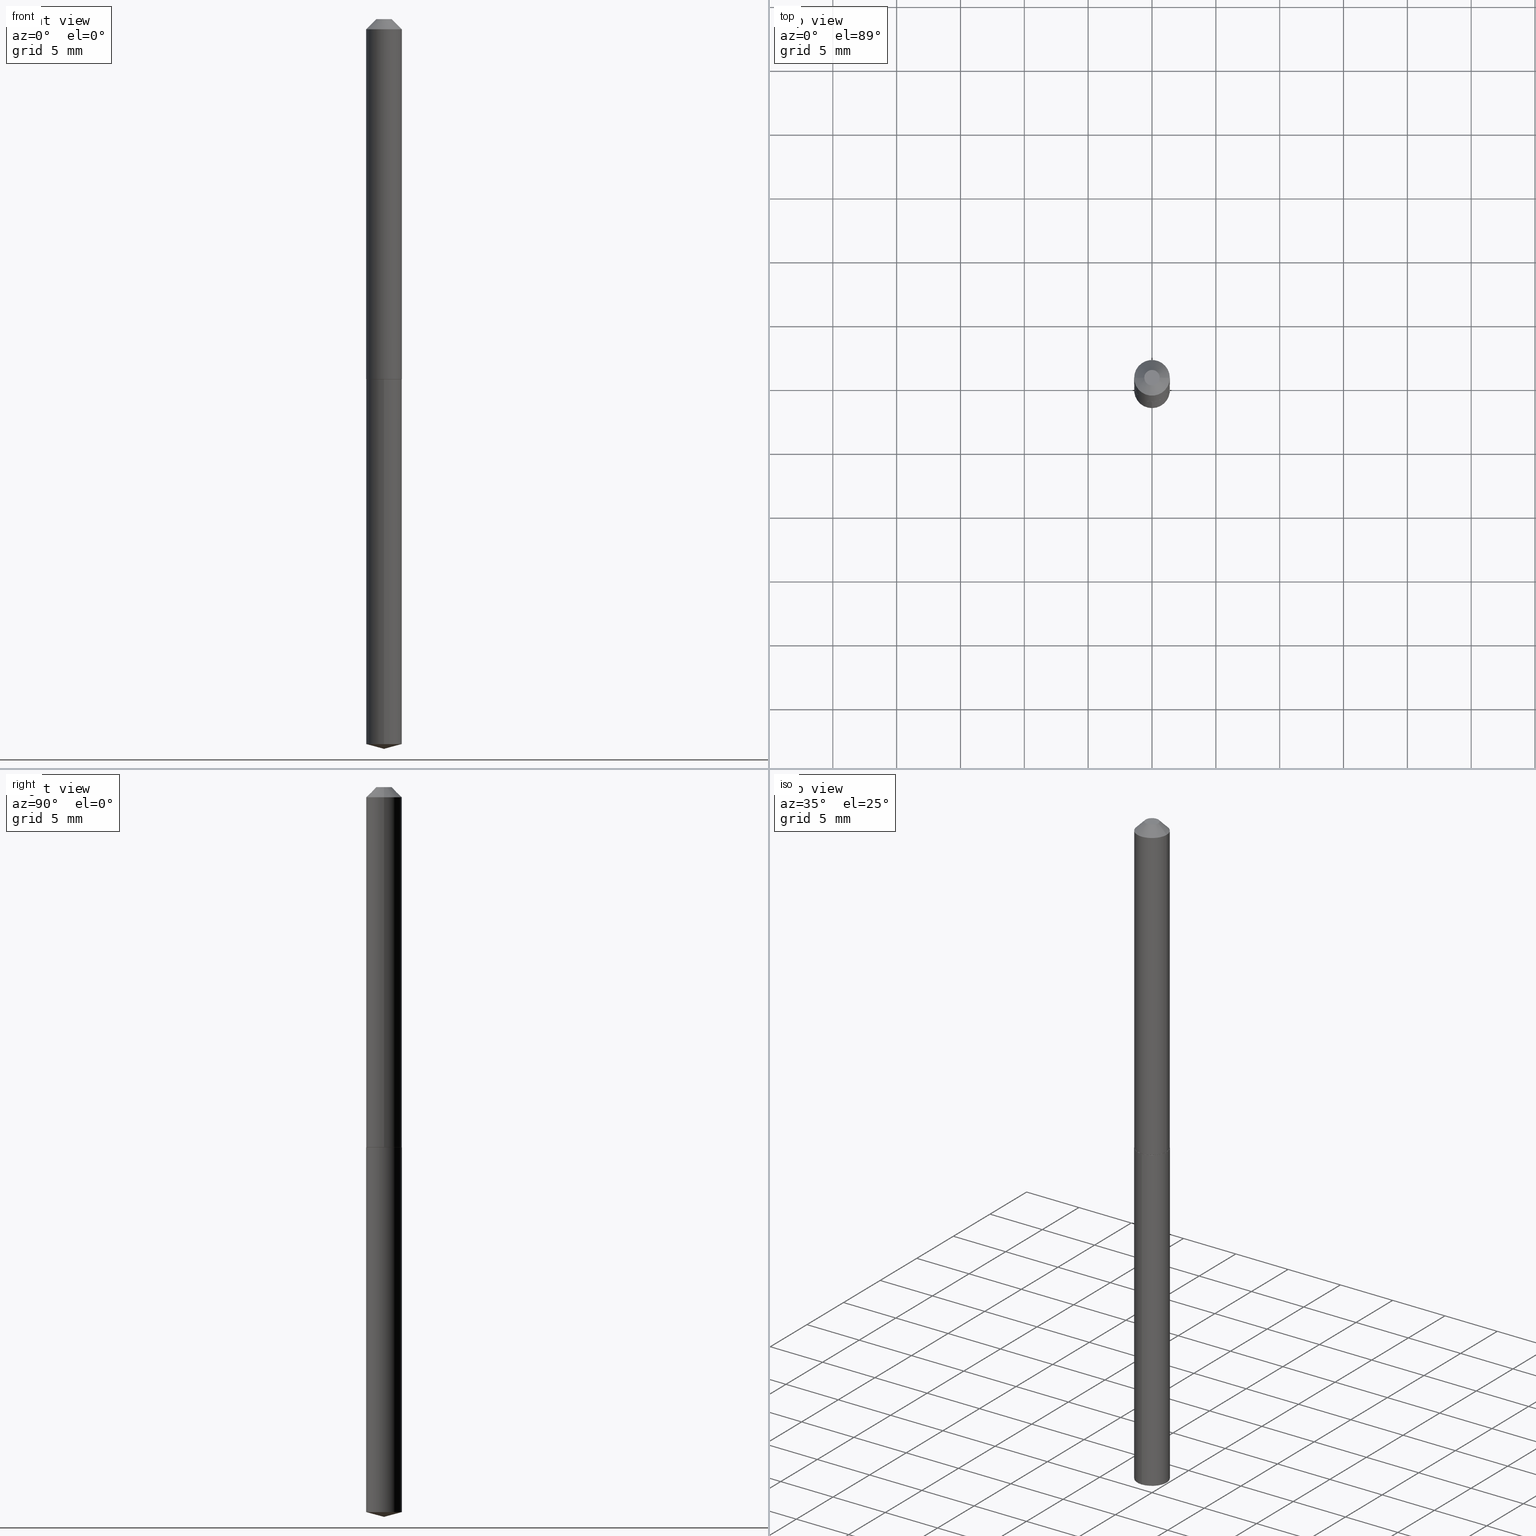
[diagram: canonical four-view strip — front | top / right | iso, engineering-drawing reading convention]
A machine part, canonical four-view strip (front | top / right | iso — engineering-drawing reading convention). The complete STEP part file that produces these views, byte-faithful:
ISO-10303-21;
HEADER;
FILE_DESCRIPTION (( 'STEP AP203' ),
    '1' );
FILE_NAME ('58013.STEP',
    '2024-04-23T00:11:21',
    ( '' ),
    ( '' ),
    'SwSTEP 2.0',
    'SolidWorks 2023',
    '' );
FILE_SCHEMA (( 'CONFIG_CONTROL_DESIGN' ));
ENDSEC;

DATA;
#1 = DIRECTION ( 'NONE',  ( 1.000000000000000000, -6.982962677686265922E-15, 0.000000000000000000 ) ) ;
#2 = APPLICATION_CONTEXT ( 'configuration controlled 3d designs of mechanical parts and assemblies' ) ;
#3 = CARTESIAN_POINT ( 'NONE',  ( 3.907985046680821720E-16, 0.05499999999999612837, -1.110000000000000098 ) ) ;
#4 = ADVANCED_FACE ( 'NONE', ( #335 ), #324, .T. ) ;
#5 = VERTEX_POINT ( 'NONE', #243 ) ;
#6 = DIRECTION ( 'NONE',  ( 2.446324664428034914E-29, -3.490255701126888616E-15, -1.000000000000000000 ) ) ;
#7 = DIRECTION ( 'NONE',  ( -1.000000000000000000, 6.982962677686265922E-15, 0.000000000000000000 ) ) ;
#8 = AXIS2_PLACEMENT_3D ( 'NONE', #144, #265, #363 ) ;
#9 = CARTESIAN_POINT ( 'NONE',  ( 5.467228502809281415E-29, -7.802999169593315516E-15, -2.235262794416288390 ) ) ;
#10 = EDGE_CURVE ( 'NONE', #370, #221, #389, .T. ) ;
#11 = EDGE_CURVE ( 'NONE', #169, #298, #188, .T. ) ;
#12 = DIRECTION ( 'NONE',  ( -1.000000000000000000, 6.982962677686265922E-15, 0.000000000000000000 ) ) ;
#13 = CARTESIAN_POINT ( 'NONE',  ( -9.080871417020763159E-28, 1.295572059912486078E-13, 37.12007874015748143 ) ) ;
#14 = CARTESIAN_POINT ( 'NONE',  ( 0.000000000000000000, 0.000000000000000000, 0.000000000000000000 ) ) ;
#15 = ADVANCED_FACE ( 'NONE', ( #125 ), #226, .T. ) ;
#16 = DIRECTION ( 'NONE',  ( 1.000000000000000000, -6.982962677686262766E-15, 0.000000000000000000 ) ) ;
#17 = AXIS2_PLACEMENT_3D ( 'NONE', #207, #386, #118 ) ;
#18 = CARTESIAN_POINT ( 'NONE',  ( 0.000000000000000000, 0.000000000000000000, 0.000000000000000000 ) ) ;
#19 = CIRCLE ( 'NONE', #32, 0.05500000000000000028 ) ;
#20 = APPROVAL_STATUS ( 'not_yet_approved' ) ;
#21 = EDGE_CURVE ( 'NONE', #221, #370, #159, .T. ) ;
#22 = EDGE_LOOP ( 'NONE', ( #247, #306, #65, #156 ) ) ;
#23 = PERSON_AND_ORGANIZATION ( #147, #114 ) ;
#24 = CALENDAR_DATE ( 2024, 22, 4 ) ;
#25 = CONICAL_SURFACE ( 'NONE', #359, 146.9311341562576274, 1.308996938995751647 ) ;
#26 = ORIENTED_EDGE ( 'NONE', *, *, #10, .T. ) ;
#27 = DIRECTION ( 'NONE',  ( -6.982962677686266711E-15, -1.000000000000000000, 2.483498176058421144E-15 ) ) ;
#28 = ORIENTED_EDGE ( 'NONE', *, *, #138, .T. ) ;
#29 = DATE_AND_TIME ( #24, #263 ) ;
#30 = DIRECTION ( 'NONE',  ( -2.446324664428035755E-29, 3.490255701126888222E-15, 1.000000000000000000 ) ) ;
#31 = CC_DESIGN_DATE_AND_TIME_ASSIGNMENT ( #143, #299, ( #302 ) ) ;
#32 = AXIS2_PLACEMENT_3D ( 'NONE', #321, #242, #358 ) ;
#33 = CARTESIAN_POINT ( 'NONE',  ( 0.05500000000000013906, -4.257861492719215232E-15, -1.109499999999999931 ) ) ;
#34 = LOCAL_TIME ( 20, 11, 21.00000000000000000, #204 ) ;
#35 = EDGE_LOOP ( 'NONE', ( #168, #148, #337, #216 ) ) ;
#36 = FACE_OUTER_BOUND ( 'NONE', #200, .T. ) ;
#37 = VERTEX_POINT ( 'NONE', #310 ) ;
#38 = LINE ( 'NONE', #128, #134 ) ;
#39 = ORIENTED_EDGE ( 'NONE', *, *, #272, .F. ) ;
#40 = DIRECTION ( 'NONE',  ( 1.000000000000000000, 0.000000000000000000, 0.000000000000000000 ) ) ;
#41 = CONICAL_SURFACE ( 'NONE', #89, 146.9311341562576274, 1.308996938995751647 ) ;
#42 = AXIS2_PLACEMENT_3D ( 'NONE', #275, #185, #334 ) ;
#43 = EDGE_CURVE ( 'NONE', #368, #298, #234, .T. ) ;
#44 = DIRECTION ( 'NONE',  ( -2.445468806185136597E-29, 3.491481338843145583E-15, 1.000000000000000000 ) ) ;
#45 = ADVANCED_FACE ( 'NONE', ( #102 ), #199, .T. ) ;
#46 = DIRECTION ( 'NONE',  ( 2.445468806185136597E-29, -3.491481338843145583E-15, -1.000000000000000000 ) ) ;
#47 = LINE ( 'NONE', #376, #345 ) ;
#48 = DIRECTION ( 'NONE',  ( -2.445468806185136597E-29, 3.491481338843145583E-15, 1.000000000000000000 ) ) ;
#49 = AXIS2_PLACEMENT_3D ( 'NONE', #313, #48, #260 ) ;
#50 =( CONVERSION_BASED_UNIT ( 'INCH', #164 ) LENGTH_UNIT ( ) NAMED_UNIT ( #220 ) );
#51 = CIRCLE ( 'NONE', #340, 0.05500000000000001416 ) ;
#52 = VECTOR ( 'NONE', #231, 39.37007874015748143 ) ;
#53 = DIRECTION ( 'NONE',  ( -2.446324664428035755E-29, 3.490255701126888222E-15, 1.000000000000000000 ) ) ;
#54 = ORIENTED_EDGE ( 'NONE', *, *, #155, .T. ) ;
#55 = COORDINATED_UNIVERSAL_TIME_OFFSET ( 5, 0, .BEHIND. ) ;
#56 = EDGE_CURVE ( 'NONE', #366, #5, #191, .T. ) ;
#57 = DIRECTION ( 'NONE',  ( 1.000000000000000000, -6.982962677686270655E-15, 0.000000000000000000 ) ) ;
#58 = VECTOR ( 'NONE', #95, 39.37007874015748143 ) ;
#59 = FACE_OUTER_BOUND ( 'NONE', #186, .T. ) ;
#60 = PERSON_AND_ORGANIZATION ( #147, #114 ) ;
#61 = LINE ( 'NONE', #215, #58 ) ;
#62 = CARTESIAN_POINT ( 'NONE',  ( 7.642090019328601786E-31, -1.091087918388490144E-16, -0.03125000000000020123 ) ) ;
#63 = EDGE_CURVE ( 'NONE', #370, #169, #282, .T. ) ;
#64 = LINE ( 'NONE', #33, #80 ) ;
#65 = ORIENTED_EDGE ( 'NONE', *, *, #56, .T. ) ;
#66 = DIRECTION ( 'NONE',  ( 1.000000000000000000, -6.982962677686270655E-15, 0.000000000000000000 ) ) ;
#67 = ORIENTED_EDGE ( 'NONE', *, *, #319, .T. ) ;
#68 = ORIENTED_EDGE ( 'NONE', *, *, #177, .T. ) ;
#69 = ADVANCED_FACE ( 'NONE', ( #257 ), #77, .F. ) ;
#70 = AXIS2_PLACEMENT_3D ( 'NONE', #197, #349, #317 ) ;
#71 = VECTOR ( 'NONE', #99, 39.37007874015748143 ) ;
#72 = DIRECTION ( 'NONE',  ( 1.000000000000000000, -6.982962677686267499E-15, 4.876176775795936353E-29 ) ) ;
#73 = EDGE_CURVE ( 'NONE', #211, #368, #108, .T. ) ;
#74 =( LENGTH_UNIT ( ) NAMED_UNIT ( * ) SI_UNIT ( $, .METRE. ) );
#75 = MECHANICAL_CONTEXT ( 'NONE', #2, 'mechanical' ) ;
#76 = CARTESIAN_POINT ( 'NONE',  ( 3.907985046681098807E-16, 0.05499999999999612837, -1.110000000000000098 ) ) ;
#77 = PLANE ( 'NONE',  #70 ) ;
#78 = EDGE_CURVE ( 'NONE', #37, #366, #320, .T. ) ;
#79 = EDGE_LOOP ( 'NONE', ( #205, #127, #278, #140 ) ) ;
#80 = VECTOR ( 'NONE', #390, 39.37007874015748143 ) ;
#81 = PERSON_AND_ORGANIZATION ( #147, #114 ) ;
#82 = APPROVAL_PERSON_ORGANIZATION ( #60, #348, #261 ) ;
#83 = APPLICATION_CONTEXT ( 'configuration controlled 3d designs of mechanical parts and assemblies' ) ;
#84 = DATE_AND_TIME ( #203, #109 ) ;
#85 = ORIENTED_EDGE ( 'NONE', *, *, #272, .T. ) ;
#86 = PERSON_AND_ORGANIZATION ( #147, #114 ) ;
#87 = DIRECTION ( 'NONE',  ( -2.446324664428035755E-29, 3.490255701126888222E-15, 1.000000000000000000 ) ) ;
#88 = AXIS2_PLACEMENT_3D ( 'NONE', #62, #274, #1 ) ;
#89 = AXIS2_PLACEMENT_3D ( 'NONE', #13, #107, #101 ) ;
#90 = DIRECTION ( 'NONE',  ( -2.445468806185136597E-29, 3.491481338843145583E-15, 1.000000000000000000 ) ) ;
#91 = VERTEX_POINT ( 'NONE', #179 ) ;
#92 = PERSON_AND_ORGANIZATION_ROLE ( 'design_supplier' ) ;
#93 = LINE ( 'NONE', #213, #172 ) ;
#94 = CARTESIAN_POINT ( 'NONE',  ( 2.713247640462409112E-29, -3.873798545446469458E-15, -1.109499999999999931 ) ) ;
#95 = DIRECTION ( 'NONE',  ( -0.7071067811865294761, 7.493145998870289474E-15, 0.7071067811865655584 ) ) ;
#96 = ORIENTED_EDGE ( 'NONE', *, *, #63, .F. ) ;
#97 = FACE_OUTER_BOUND ( 'NONE', #238, .T. ) ;
#98 = ORIENTED_EDGE ( 'NONE', *, *, #289, .T. ) ;
#99 = DIRECTION ( 'NONE',  ( -2.445468806185136877E-29, 3.491481338843145188E-15, 1.000000000000000000 ) ) ;
#100 = EDGE_LOOP ( 'NONE', ( #323, #304 ) ) ;
#101 = DIRECTION ( 'NONE',  ( -6.982962677686266711E-15, -1.000000000000000000, 3.510303681827577719E-15 ) ) ;
#102 = FACE_OUTER_BOUND ( 'NONE', #326, .T. ) ;
#103 = CC_DESIGN_DATE_AND_TIME_ASSIGNMENT ( #29, #262, ( #233 ) ) ;
#104 = CIRCLE ( 'NONE', #377, 0.05450000000000013167 ) ;
#105 = DIRECTION ( 'NONE',  ( -2.445468806185136597E-29, 3.491481338843145583E-15, 1.000000000000000000 ) ) ;
#106 = PRODUCT_RELATED_PRODUCT_CATEGORY ( 'detail', '', ( #338 ) ) ;
#107 = DIRECTION ( 'NONE',  ( -2.446324664428035755E-29, 3.490255701126888222E-15, 1.000000000000000000 ) ) ;
#108 = CIRCLE ( 'NONE', #49, 0.02375000000000000375 ) ;
#109 = LOCAL_TIME ( 20, 11, 21.00000000000000000, #327 ) ;
#110 = DIRECTION ( 'NONE',  ( -0.7071067811865453523, 2.468850131082234184E-15, -0.7071067811865496822 ) ) ;
#111 = AXIS2_PLACEMENT_3D ( 'NONE', #378, #53, #381 ) ;
#112 = EDGE_CURVE ( 'NONE', #350, #37, #38, .T. ) ;
#113 = COORDINATED_UNIVERSAL_TIME_OFFSET ( 5, 0, .BEHIND. ) ;
#114 = ORGANIZATION ( 'UNSPECIFIED', 'UNSPECIFIED', '' ) ;
#115 = ORIENTED_EDGE ( 'NONE', *, *, #10, .F. ) ;
#116 = EDGE_CURVE ( 'NONE', #91, #221, #64, .T. ) ;
#117 = APPROVAL_DATE_TIME ( #178, #160 ) ;
#118 = DIRECTION ( 'NONE',  ( -6.982962677686266711E-15, -1.000000000000000000, 2.483498176058421144E-15 ) ) ;
#119 = ORIENTED_EDGE ( 'NONE', *, *, #43, .F. ) ;
#120 = APPROVAL_ROLE ( '' ) ;
#121 = FACE_OUTER_BOUND ( 'NONE', #22, .T. ) ;
#122 = DIRECTION ( 'NONE',  ( 2.445468806185136597E-29, -3.491481338843145583E-15, -1.000000000000000000 ) ) ;
#123 = EDGE_CURVE ( 'NONE', #91, #301, #104, .T. ) ;
#124 = CYLINDRICAL_SURFACE ( 'NONE', #8, 0.05500000000000007661 ) ;
#125 = FACE_OUTER_BOUND ( 'NONE', #35, .T. ) ;
#126 = CARTESIAN_POINT ( 'NONE',  ( 2.713247640462409112E-29, -3.873798545446469458E-15, -1.109499999999999931 ) ) ;
#127 = ORIENTED_EDGE ( 'NONE', *, *, #43, .T. ) ;
#128 = CARTESIAN_POINT ( 'NONE',  ( 5.504247155766777399E-29, -7.853075327535498597E-15, -2.249999999999999556 ) ) ;
#129 = DIRECTION ( 'NONE',  ( -2.445468806185136597E-29, 3.491481338843145583E-15, 1.000000000000000000 ) ) ;
#130 = EDGE_CURVE ( 'NONE', #368, #211, #375, .T. ) ;
#131 = CARTESIAN_POINT ( 'NONE',  ( 7.642090019328601786E-31, -1.091087918388490144E-16, -0.03125000000000020123 ) ) ;
#132 = DIRECTION ( 'NONE',  ( 1.000000000000000000, -6.982962677686270655E-15, 0.000000000000000000 ) ) ;
#133 = ADVANCED_BREP_SHAPE_REPRESENTATION ( '58013', ( #142, #283, #137 ), #285 ) ;
#134 = VECTOR ( 'NONE', #367, 39.37007874015748854 ) ;
#135 = CARTESIAN_POINT ( 'NONE',  ( 2.713247640462409112E-29, -3.873798545446469458E-15, -1.109499999999999931 ) ) ;
#136 = FACE_OUTER_BOUND ( 'NONE', #184, .T. ) ;
#137 = AXIS2_PLACEMENT_3D ( 'NONE', #18, #232, #40 ) ;
#138 = EDGE_CURVE ( 'NONE', #37, #318, #244, .T. ) ;
#139 = AXIS2_PLACEMENT_3D ( 'NONE', #154, #30, #268 ) ;
#140 = ORIENTED_EDGE ( 'NONE', *, *, #319, .F. ) ;
#141 = PERSON_AND_ORGANIZATION_ROLE ( 'creator' ) ;
#142 = MANIFOLD_SOLID_BREP ( 'Body-Move/Copy2[1]', #357 ) ;
#143 = DATE_AND_TIME ( #294, #34 ) ;
#144 = CARTESIAN_POINT ( 'NONE',  ( 0.000000000000000000, 0.000000000000000000, 0.000000000000000000 ) ) ;
#145 = ORIENTED_EDGE ( 'NONE', *, *, #255, .F. ) ;
#146 = CARTESIAN_POINT ( 'NONE',  ( 2.714470374865501353E-29, -3.875544286115891751E-15, -1.109999999999999876 ) ) ;
#147 = PERSON ( 'UNSPECIFIED', 'UNSPECIFIED', 'UNSPECIFIED', ('UNSPECIFIED'), ('UNSPECIFIED'), ('UNSPECIFIED') ) ;
#148 = ORIENTED_EDGE ( 'NONE', *, *, #63, .T. ) ;
#149 = AXIS2_PLACEMENT_3D ( 'NONE', #146, #6, #303 ) ;
#150 = CARTESIAN_POINT ( 'NONE',  ( -0.05500000000000001416, -1.600655163974602647E-15, -0.03125000000000020123 ) ) ;
#151 = ORIENTED_EDGE ( 'NONE', *, *, #177, .F. ) ;
#152 = CARTESIAN_POINT ( 'NONE',  ( -9.080871417020763159E-28, 1.295572059912486078E-13, 37.12007874015748143 ) ) ;
#153 = ORIENTED_EDGE ( 'NONE', *, *, #21, .F. ) ;
#154 = CARTESIAN_POINT ( 'NONE',  ( 2.714470374865501353E-29, -3.875544286115891751E-15, -1.109999999999999876 ) ) ;
#155 = EDGE_CURVE ( 'NONE', #318, #5, #182, .T. ) ;
#156 = ORIENTED_EDGE ( 'NONE', *, *, #155, .F. ) ;
#157 = AXIS2_PLACEMENT_3D ( 'NONE', #222, #44, #16 ) ;
#158 = CARTESIAN_POINT ( 'NONE',  ( 0.05500000000000001416, -4.931717391115936908E-16, -0.03125000000000020123 ) ) ;
#159 = CIRCLE ( 'NONE', #279, 0.05500000000000013906 ) ;
#160 = APPROVAL ( #20, 'UNSPECIFIED' ) ;
#161 = CC_DESIGN_PERSON_AND_ORGANIZATION_ASSIGNMENT ( #86, #353, ( #233 ) ) ;
#162 = CC_DESIGN_APPROVAL ( #160, ( #302 ) ) ;
#163 = CARTESIAN_POINT ( 'NONE',  ( 0.05500000000000001416, -4.864361817162833247E-16, -0.03125000000000020123 ) ) ;
#164 = LENGTH_MEASURE_WITH_UNIT ( LENGTH_MEASURE( 0.02539999999999999897 ), #74 );
#165 = CC_DESIGN_PERSON_AND_ORGANIZATION_ASSIGNMENT ( #267, #141, ( #271 ) ) ;
#166 = LOCAL_TIME ( 20, 11, 21.00000000000000000, #55 ) ;
#167 = APPLICATION_PROTOCOL_DEFINITION ( 'international standard', 'config_control_design', 1994, #83 ) ;
#168 = ORIENTED_EDGE ( 'NONE', *, *, #21, .T. ) ;
#169 = VERTEX_POINT ( 'NONE', #150 ) ;
#170 = ORIENTED_EDGE ( 'NONE', *, *, #11, .T. ) ;
#171 = APPROVAL_DATE_TIME ( #84, #248 ) ;
#172 = VECTOR ( 'NONE', #365, 39.37007874015748143 ) ;
#173 = CARTESIAN_POINT ( 'NONE',  ( -0.02375000000000000375, 2.203997595144722704E-16, 3.673940397307042473E-20 ) ) ;
#174 = ORIENTED_EDGE ( 'NONE', *, *, #123, .F. ) ;
#175 = FACE_OUTER_BOUND ( 'NONE', #250, .T. ) ;
#176 = EDGE_LOOP ( 'NONE', ( #39, #296, #245, #115 ) ) ;
#177 = EDGE_CURVE ( 'NONE', #5, #318, #19, .T. ) ;
#178 = DATE_AND_TIME ( #264, #166 ) ;
#179 = CARTESIAN_POINT ( 'NONE',  ( 0.05450000000000013167, -4.256115752049793728E-15, -1.109999999999999876 ) ) ;
#180 = ORIENTED_EDGE ( 'NONE', *, *, #330, .T. ) ;
#181 = CC_DESIGN_PERSON_AND_ORGANIZATION_ASSIGNMENT ( #237, #292, ( #302 ) ) ;
#182 = CIRCLE ( 'NONE', #17, 0.05500000000000000028 ) ;
#183 = DIRECTION ( 'NONE',  ( -2.445468806185136597E-29, 3.491481338843145583E-15, 1.000000000000000000 ) ) ;
#184 = EDGE_LOOP ( 'NONE', ( #332, #354, #382 ) ) ;
#185 = DIRECTION ( 'NONE',  ( -2.445468806185136597E-29, 3.491481338843145583E-15, 1.000000000000000000 ) ) ;
#186 = EDGE_LOOP ( 'NONE', ( #388, #85, #153, #291 ) ) ;
#187 = PLANE ( 'NONE',  #288 ) ;
#188 = CIRCLE ( 'NONE', #88, 0.05500000000000001416 ) ;
#189 = CC_DESIGN_SECURITY_CLASSIFICATION ( #233, ( #271 ) ) ;
#190 = CARTESIAN_POINT ( 'NONE',  ( 7.642090019328601786E-31, -1.091087918388490144E-16, -0.03125000000000020123 ) ) ;
#191 = LINE ( 'NONE', #308, #52 ) ;
#192 = ADVANCED_FACE ( 'NONE', ( #239 ), #315, .T. ) ;
#193 = DIRECTION ( 'NONE',  ( -6.982962677686266711E-15, -1.000000000000000000, 4.966996352116842287E-15 ) ) ;
#194 = CARTESIAN_POINT ( 'NONE',  ( 0.02375000000000000375, -3.246865045816785938E-16, 3.673940397613518113E-20 ) ) ;
#195 = ADVANCED_FACE ( 'NONE', ( #97 ), #273, .T. ) ;
#196 = CARTESIAN_POINT ( 'NONE',  ( 7.718285615842841387E-30, -6.657517931040042633E-15, -1.109999999999999876 ) ) ;
#197 = CARTESIAN_POINT ( 'NONE',  ( -4.492253318864007613E-49, 6.413747168845485636E-35, 1.836970198721037118E-20 ) ) ;
#198 = PERSON_AND_ORGANIZATION_ROLE ( 'design_owner' ) ;
#199 = CONICAL_SURFACE ( 'NONE', #235, 0.05500000000000001416, 0.7853981633974452814 ) ;
#200 = EDGE_LOOP ( 'NONE', ( #145, #240, #364 ) ) ;
#201 = CIRCLE ( 'NONE', #157, 0.05450000000000013167 ) ;
#202 = ADVANCED_FACE ( 'NONE', ( #59 ), #339, .T. ) ;
#203 = CALENDAR_DATE ( 2024, 22, 4 ) ;
#204 = COORDINATED_UNIVERSAL_TIME_OFFSET ( 5, 0, .BEHIND. ) ;
#205 = ORIENTED_EDGE ( 'NONE', *, *, #130, .F. ) ;
#206 = SECURITY_CLASSIFICATION_LEVEL ( 'unclassified' ) ;
#207 = CARTESIAN_POINT ( 'NONE',  ( 2.714470374865501353E-29, -3.875544286115891751E-15, -1.109999999999999876 ) ) ;
#208 = VECTOR ( 'NONE', #372, 39.37007874015748143 ) ;
#209 = APPROVAL_DATE_TIME ( #351, #348 ) ;
#210 = DIRECTION ( 'NONE',  ( 1.000000000000000000, -6.982962677686262766E-15, 0.000000000000000000 ) ) ;
#211 = VERTEX_POINT ( 'NONE', #173 ) ;
#212 = APPROVAL_STATUS ( 'not_yet_approved' ) ;
#213 = CARTESIAN_POINT ( 'NONE',  ( 5.502330489663844152E-29, -7.855796243265589371E-15, -2.249999999999999556 ) ) ;
#214 = DIRECTION ( 'NONE',  ( 1.000000000000000000, -6.982962677686270655E-15, 0.000000000000000000 ) ) ;
#215 = CARTESIAN_POINT ( 'NONE',  ( -0.05500000000000013906, -3.483000040778413220E-15, -1.109499999999999931 ) ) ;
#216 = ORIENTED_EDGE ( 'NONE', *, *, #289, .F. ) ;
#217 = ADVANCED_FACE ( 'NONE', ( #175 ), #295, .F. ) ;
#218 = CIRCLE ( 'NONE', #322, 0.05500000000000000028 ) ;
#219 = DIRECTION ( 'NONE',  ( -6.982962677686266711E-15, -1.000000000000000000, 3.510303681827577719E-15 ) ) ;
#220 = DIMENSIONAL_EXPONENTS ( 1.000000000000000000, 0.000000000000000000, 0.000000000000000000, 0.000000000000000000, 0.000000000000000000, 0.000000000000000000, 0.000000000000000000 ) ;
#221 = VERTEX_POINT ( 'NONE', #300 ) ;
#222 = CARTESIAN_POINT ( 'NONE',  ( 2.714470374865501353E-29, -3.875544286115891751E-15, -1.109999999999999876 ) ) ;
#223 = ORIENTED_EDGE ( 'NONE', *, *, #352, .F. ) ;
#224 = UNCERTAINTY_MEASURE_WITH_UNIT (LENGTH_MEASURE( 1.000000000000000082E-05 ), #50, 'distance_accuracy_value', 'NONE');
#225 = DIRECTION ( 'NONE',  ( -2.445468806185136597E-29, 3.491481338843145583E-15, 1.000000000000000000 ) ) ;
#226 = CYLINDRICAL_SURFACE ( 'NONE', #341, 0.05500000000000007661 ) ;
#227 = VECTOR ( 'NONE', #343, 39.37007874015748143 ) ;
#228 = ADVANCED_FACE ( 'NONE', ( #121 ), #277, .T. ) ;
#229 = DIRECTION ( 'NONE',  ( -2.445468806185136597E-29, 3.491481338843145583E-15, 1.000000000000000000 ) ) ;
#230 = DESIGN_CONTEXT ( 'detailed design', #83, 'design' ) ;
#231 = DIRECTION ( 'NONE',  ( -2.446324664428035755E-29, 3.490255701126888616E-15, 1.000000000000000000 ) ) ;
#232 = DIRECTION ( 'NONE',  ( 0.000000000000000000, 0.000000000000000000, 1.000000000000000000 ) ) ;
#233 = SECURITY_CLASSIFICATION ( '', '', #206 ) ;
#234 = LINE ( 'NONE', #163, #208 ) ;
#235 = AXIS2_PLACEMENT_3D ( 'NONE', #190, #46, #12 ) ;
#236 = CARTESIAN_POINT ( 'NONE',  ( 5.504230494963079257E-29, -7.853075327535498597E-15, -2.249999999999999556 ) ) ;
#237 = PERSON_AND_ORGANIZATION ( #147, #114 ) ;
#238 = EDGE_LOOP ( 'NONE', ( #180, #28, #151, #266 ) ) ;
#239 = FACE_OUTER_BOUND ( 'NONE', #176, .T. ) ;
#240 = ORIENTED_EDGE ( 'NONE', *, *, #112, .T. ) ;
#241 = AXIS2_PLACEMENT_3D ( 'NONE', #126, #305, #66 ) ;
#242 = DIRECTION ( 'NONE',  ( -2.446324664428035755E-29, 3.490255701126888222E-15, 1.000000000000000000 ) ) ;
#243 = CARTESIAN_POINT ( 'NONE',  ( -3.840629472727175717E-16, -0.05500000000000387912, -1.109999999999999876 ) ) ;
#244 = LINE ( 'NONE', #3, #259 ) ;
#245 = ORIENTED_EDGE ( 'NONE', *, *, #116, .T. ) ;
#246 = DIRECTION ( 'NONE',  ( -2.446324664428035755E-29, 3.490255701126888222E-15, 1.000000000000000000 ) ) ;
#247 = ORIENTED_EDGE ( 'NONE', *, *, #138, .F. ) ;
#248 = APPROVAL ( #361, 'UNSPECIFIED' ) ;
#249 = APPROVAL_ROLE ( '' ) ;
#250 = EDGE_LOOP ( 'NONE', ( #68, #54 ) ) ;
#251 = DIRECTION ( 'NONE',  ( -2.446324664428035755E-29, 3.490255701126888222E-15, 1.000000000000000000 ) ) ;
#252 = ADVANCED_FACE ( 'NONE', ( #297 ), #124, .T. ) ;
#253 = AXIS2_PLACEMENT_3D ( 'NONE', #325, #90, #57 ) ;
#254 = CC_DESIGN_APPROVAL ( #248, ( #271 ) ) ;
#255 = EDGE_CURVE ( 'NONE', #350, #366, #93, .T. ) ;
#256 =( NAMED_UNIT ( * ) SI_UNIT ( $, .STERADIAN. ) SOLID_ANGLE_UNIT ( ) );
#257 = FACE_OUTER_BOUND ( 'NONE', #100, .T. ) ;
#258 = CC_DESIGN_PERSON_AND_ORGANIZATION_ASSIGNMENT ( #81, #92, ( #271 ) ) ;
#259 = VECTOR ( 'NONE', #328, 39.37007874015748143 ) ;
#260 = DIRECTION ( 'NONE',  ( 1.000000000000000000, -6.982962677686266711E-15, 4.876182450887180427E-29 ) ) ;
#261 = APPROVAL_ROLE ( '' ) ;
#262 = DATE_TIME_ROLE ( 'classification_date' ) ;
#263 = LOCAL_TIME ( 20, 11, 21.00000000000000000, #113 ) ;
#264 = CALENDAR_DATE ( 2024, 22, 4 ) ;
#265 = DIRECTION ( 'NONE',  ( -2.445468806185136597E-29, 3.491481338843145583E-15, 1.000000000000000000 ) ) ;
#266 = ORIENTED_EDGE ( 'NONE', *, *, #56, .F. ) ;
#267 = PERSON_AND_ORGANIZATION ( #147, #114 ) ;
#268 = DIRECTION ( 'NONE',  ( -6.982962677686266711E-15, -1.000000000000000000, 2.483498176058421144E-15 ) ) ;
#269 = CARTESIAN_POINT ( 'NONE',  ( 7.642090019328601786E-31, -1.091087918388490144E-16, -0.03125000000000020123 ) ) ;
#270 = AXIS2_PLACEMENT_3D ( 'NONE', #94, #129, #214 ) ;
#271 = PRODUCT_DEFINITION_FORMATION_WITH_SPECIFIED_SOURCE ( 'ANY', '', #338, .NOT_KNOWN. ) ;
#272 = EDGE_CURVE ( 'NONE', #301, #370, #61, .T. ) ;
#273 = CYLINDRICAL_SURFACE ( 'NONE', #139, 0.05500000000000000028 ) ;
#274 = DIRECTION ( 'NONE',  ( -2.445468806185136597E-29, 3.491481338843145583E-15, 1.000000000000000000 ) ) ;
#275 = CARTESIAN_POINT ( 'NONE',  ( -8.984506637728015227E-49, 1.282749433769097127E-34, 3.673940397442074236E-20 ) ) ;
#276 = ORIENTED_EDGE ( 'NONE', *, *, #73, .F. ) ;
#277 = CYLINDRICAL_SURFACE ( 'NONE', #373, 0.05500000000000000028 ) ;
#278 = ORIENTED_EDGE ( 'NONE', *, *, #362, .T. ) ;
#279 = AXIS2_PLACEMENT_3D ( 'NONE', #135, #229, #132 ) ;
#280 = CARTESIAN_POINT ( 'NONE',  ( -3.840629472726899616E-16, -0.05500000000000779959, -2.235262794416287946 ) ) ;
#281 = PRODUCT_DEFINITION_SHAPE ( 'NONE', 'NONE',  #302 ) ;
#282 = LINE ( 'NONE', #309, #227 ) ;
#283 = MANIFOLD_SOLID_BREP ( 'Body-Move/Copy2[2]', #307 ) ;
#284 = CC_DESIGN_PERSON_AND_ORGANIZATION_ASSIGNMENT ( #347, #198, ( #338 ) ) ;
#285 =( GEOMETRIC_REPRESENTATION_CONTEXT ( 3 ) GLOBAL_UNCERTAINTY_ASSIGNED_CONTEXT ( ( #224 ) ) GLOBAL_UNIT_ASSIGNED_CONTEXT ( ( #50, #336, #256 ) ) REPRESENTATION_CONTEXT ( 'NONE', 'WORKASPACE' ) );
#286 = ADVANCED_FACE ( 'NONE', ( #36 ), #25, .T. ) ;
#287 = LINE ( 'NONE', #311, #71 ) ;
#288 = AXIS2_PLACEMENT_3D ( 'NONE', #196, #312, #314 ) ;
#289 = EDGE_CURVE ( 'NONE', #221, #298, #287, .T. ) ;
#290 = PERSON_AND_ORGANIZATION ( #147, #114 ) ;
#291 = ORIENTED_EDGE ( 'NONE', *, *, #116, .F. ) ;
#292 = PERSON_AND_ORGANIZATION_ROLE ( 'creator' ) ;
#293 = ORIENTED_EDGE ( 'NONE', *, *, #11, .F. ) ;
#294 = CALENDAR_DATE ( 2024, 22, 4 ) ;
#295 = PLANE ( 'NONE',  #149 ) ;
#296 = ORIENTED_EDGE ( 'NONE', *, *, #352, .T. ) ;
#297 = FACE_OUTER_BOUND ( 'NONE', #329, .T. ) ;
#298 = VERTEX_POINT ( 'NONE', #158 ) ;
#299 = DATE_TIME_ROLE ( 'creation_date' ) ;
#300 = CARTESIAN_POINT ( 'NONE',  ( 0.05500000000000013906, -4.257861492719215232E-15, -1.109499999999999931 ) ) ;
#301 = VERTEX_POINT ( 'NONE', #369 ) ;
#302 = PRODUCT_DEFINITION ( 'UNKNOWN', '', #271, #230 ) ;
#303 = DIRECTION ( 'NONE',  ( 6.982962677686265922E-15, 1.000000000000000000, -3.490255701126888616E-15 ) ) ;
#304 = ORIENTED_EDGE ( 'NONE', *, *, #130, .T. ) ;
#305 = DIRECTION ( 'NONE',  ( -2.445468806185136597E-29, 3.491481338843145583E-15, 1.000000000000000000 ) ) ;
#306 = ORIENTED_EDGE ( 'NONE', *, *, #78, .T. ) ;
#307 = CLOSED_SHELL ( 'NONE', ( #4, #15, #202, #384, #192, #252, #45, #69 ) ) ;
#308 = CARTESIAN_POINT ( 'NONE',  ( -3.840629472727175717E-16, -0.05500000000000387912, -1.109999999999999876 ) ) ;
#309 = CARTESIAN_POINT ( 'NONE',  ( -0.05500000000000007661, 3.907985046680556465E-16, -2.705414299640202216E-30 ) ) ;
#310 = CARTESIAN_POINT ( 'NONE',  ( 3.907985046681096342E-16, 0.05499999999999219402, -2.235262794416288390 ) ) ;
#311 = CARTESIAN_POINT ( 'NONE',  ( 0.05500000000000007661, -3.840629472727452311E-16, 2.681897226687768680E-30 ) ) ;
#312 = DIRECTION ( 'NONE',  ( -2.438088387897960049E-29, 3.491481338843145188E-15, 1.000000000000000000 ) ) ;
#313 = CARTESIAN_POINT ( 'NONE',  ( -8.984506637728015227E-49, 1.282749433769097127E-34, 3.673940397442074236E-20 ) ) ;
#314 = DIRECTION ( 'NONE',  ( 1.000000000000000000, -6.982962677686265922E-15, 4.876176775795935793E-29 ) ) ;
#315 = CONICAL_SURFACE ( 'NONE', #253, 0.05500000000000013906, 0.7853981633974227439 ) ;
#316 = LOCAL_TIME ( 20, 11, 21.00000000000000000, #383 ) ;
#317 = DIRECTION ( 'NONE',  ( -1.000000000000000000, 6.982962677686265922E-15, -4.876176775795935793E-29 ) ) ;
#318 = VERTEX_POINT ( 'NONE', #76 ) ;
#319 = EDGE_CURVE ( 'NONE', #211, #169, #47, .T. ) ;
#320 = CIRCLE ( 'NONE', #111, 0.05500000000000000028 ) ;
#321 = CARTESIAN_POINT ( 'NONE',  ( 2.714470374865501353E-29, -3.875544286115891751E-15, -1.109999999999999876 ) ) ;
#322 = AXIS2_PLACEMENT_3D ( 'NONE', #9, #251, #193 ) ;
#323 = ORIENTED_EDGE ( 'NONE', *, *, #73, .T. ) ;
#324 = CONICAL_SURFACE ( 'NONE', #385, 0.05500000000000001416, 0.7853981633974452814 ) ;
#325 = CARTESIAN_POINT ( 'NONE',  ( 2.713247640462409112E-29, -3.873798545446469458E-15, -1.109499999999999931 ) ) ;
#326 = EDGE_LOOP ( 'NONE', ( #119, #276, #67, #170 ) ) ;
#327 = COORDINATED_UNIVERSAL_TIME_OFFSET ( 5, 0, .BEHIND. ) ;
#328 = DIRECTION ( 'NONE',  ( -2.446324664428035755E-29, 3.490255701126888616E-15, 1.000000000000000000 ) ) ;
#329 = EDGE_LOOP ( 'NONE', ( #96, #26, #98, #293 ) ) ;
#330 = EDGE_CURVE ( 'NONE', #366, #37, #218, .T. ) ;
#331 = CARTESIAN_POINT ( 'NONE',  ( 2.714470374865501353E-29, -3.875544286115891751E-15, -1.109999999999999876 ) ) ;
#332 = ORIENTED_EDGE ( 'NONE', *, *, #112, .F. ) ;
#333 = CC_DESIGN_APPROVAL ( #348, ( #233 ) ) ;
#334 = DIRECTION ( 'NONE',  ( 1.000000000000000000, -6.982962677686266711E-15, 4.876182450887180427E-29 ) ) ;
#335 = FACE_OUTER_BOUND ( 'NONE', #79, .T. ) ;
#336 =( NAMED_UNIT ( * ) PLANE_ANGLE_UNIT ( ) SI_UNIT ( $, .RADIAN. ) );
#337 = ORIENTED_EDGE ( 'NONE', *, *, #362, .F. ) ;
#338 = PRODUCT ( '58013', '58013', '', ( #75 ) ) ;
#339 = CONICAL_SURFACE ( 'NONE', #241, 0.05500000000000013906, 0.7853981633974227439 ) ;
#340 = AXIS2_PLACEMENT_3D ( 'NONE', #131, #225, #346 ) ;
#341 = AXIS2_PLACEMENT_3D ( 'NONE', #14, #105, #72 ) ;
#342 = FACE_OUTER_BOUND ( 'NONE', #360, .T. ) ;
#343 = DIRECTION ( 'NONE',  ( -2.445468806185136877E-29, 3.491481338843145188E-15, 1.000000000000000000 ) ) ;
#344 = APPLICATION_PROTOCOL_DEFINITION ( 'international standard', 'config_control_design', 1994, #2 ) ;
#345 = VECTOR ( 'NONE', #110, 39.37007874015748143 ) ;
#346 = DIRECTION ( 'NONE',  ( 1.000000000000000000, -6.982962677686265922E-15, 0.000000000000000000 ) ) ;
#347 = PERSON_AND_ORGANIZATION ( #147, #114 ) ;
#348 = APPROVAL ( #212, 'UNSPECIFIED' ) ;
#349 = DIRECTION ( 'NONE',  ( 2.438088387897960049E-29, -3.491481338843145188E-15, -1.000000000000000000 ) ) ;
#350 = VERTEX_POINT ( 'NONE', #236 ) ;
#351 = DATE_AND_TIME ( #380, #316 ) ;
#352 = EDGE_CURVE ( 'NONE', #301, #91, #201, .T. ) ;
#353 = PERSON_AND_ORGANIZATION_ROLE ( 'classification_officer' ) ;
#354 = ORIENTED_EDGE ( 'NONE', *, *, #255, .T. ) ;
#355 = SHAPE_DEFINITION_REPRESENTATION ( #281, #133 ) ;
#356 = CARTESIAN_POINT ( 'NONE',  ( 2.714470374865501353E-29, -3.875544286115891751E-15, -1.109999999999999876 ) ) ;
#357 = CLOSED_SHELL ( 'NONE', ( #195, #286, #374, #228, #217 ) ) ;
#358 = DIRECTION ( 'NONE',  ( -6.982962677686266711E-15, -1.000000000000000000, 2.483498176058421144E-15 ) ) ;
#359 = AXIS2_PLACEMENT_3D ( 'NONE', #152, #246, #219 ) ;
#360 = EDGE_LOOP ( 'NONE', ( #174, #223 ) ) ;
#361 = APPROVAL_STATUS ( 'not_yet_approved' ) ;
#362 = EDGE_CURVE ( 'NONE', #298, #169, #51, .T. ) ;
#363 = DIRECTION ( 'NONE',  ( 1.000000000000000000, -6.982962677686267499E-15, 4.876176775795936353E-29 ) ) ;
#364 = ORIENTED_EDGE ( 'NONE', *, *, #330, .F. ) ;
#365 = DIRECTION ( 'NONE',  ( -6.745023994389845444E-15, -0.9659258262890685343, 0.2588190451025198513 ) ) ;
#366 = VERTEX_POINT ( 'NONE', #280 ) ;
#367 = DIRECTION ( 'NONE',  ( 6.863315791527699781E-15, 0.9659258262890704216, 0.2588190451025130789 ) ) ;
#368 = VERTEX_POINT ( 'NONE', #194 ) ;
#369 = CARTESIAN_POINT ( 'NONE',  ( -0.05450000000000013167, -3.485649267952524421E-15, -1.109999999999999876 ) ) ;
#370 = VERTEX_POINT ( 'NONE', #371 ) ;
#371 = CARTESIAN_POINT ( 'NONE',  ( -0.05500000000000013906, -3.483000040778413220E-15, -1.109499999999999931 ) ) ;
#372 = DIRECTION ( 'NONE',  ( 0.7071067811865453523, -7.319954787623248157E-15, -0.7071067811865496822 ) ) ;
#373 = AXIS2_PLACEMENT_3D ( 'NONE', #356, #87, #27 ) ;
#374 = ADVANCED_FACE ( 'NONE', ( #136 ), #41, .T. ) ;
#375 = CIRCLE ( 'NONE', #42, 0.02375000000000000375 ) ;
#376 = CARTESIAN_POINT ( 'NONE',  ( -0.05500000000000001416, 2.749541554338957361E-16, -0.03125000000000020123 ) ) ;
#377 = AXIS2_PLACEMENT_3D ( 'NONE', #331, #183, #210 ) ;
#378 = CARTESIAN_POINT ( 'NONE',  ( 5.467228502809281415E-29, -7.802999169593315516E-15, -2.235262794416288390 ) ) ;
#379 = APPROVAL_PERSON_ORGANIZATION ( #290, #160, #249 ) ;
#380 = CALENDAR_DATE ( 2024, 22, 4 ) ;
#381 = DIRECTION ( 'NONE',  ( -6.982962677686266711E-15, -1.000000000000000000, 4.966996352116842287E-15 ) ) ;
#382 = ORIENTED_EDGE ( 'NONE', *, *, #78, .F. ) ;
#383 = COORDINATED_UNIVERSAL_TIME_OFFSET ( 5, 0, .BEHIND. ) ;
#384 = ADVANCED_FACE ( 'NONE', ( #342 ), #187, .F. ) ;
#385 = AXIS2_PLACEMENT_3D ( 'NONE', #269, #122, #7 ) ;
#386 = DIRECTION ( 'NONE',  ( -2.446324664428035755E-29, 3.490255701126888222E-15, 1.000000000000000000 ) ) ;
#387 = APPROVAL_PERSON_ORGANIZATION ( #23, #248, #120 ) ;
#388 = ORIENTED_EDGE ( 'NONE', *, *, #123, .T. ) ;
#389 = CIRCLE ( 'NONE', #270, 0.05500000000000013906 ) ;
#390 = DIRECTION ( 'NONE',  ( 0.7071067811865294761, -2.468850131082068128E-15, 0.7071067811865655584 ) ) ;
ENDSEC;
END-ISO-10303-21;
